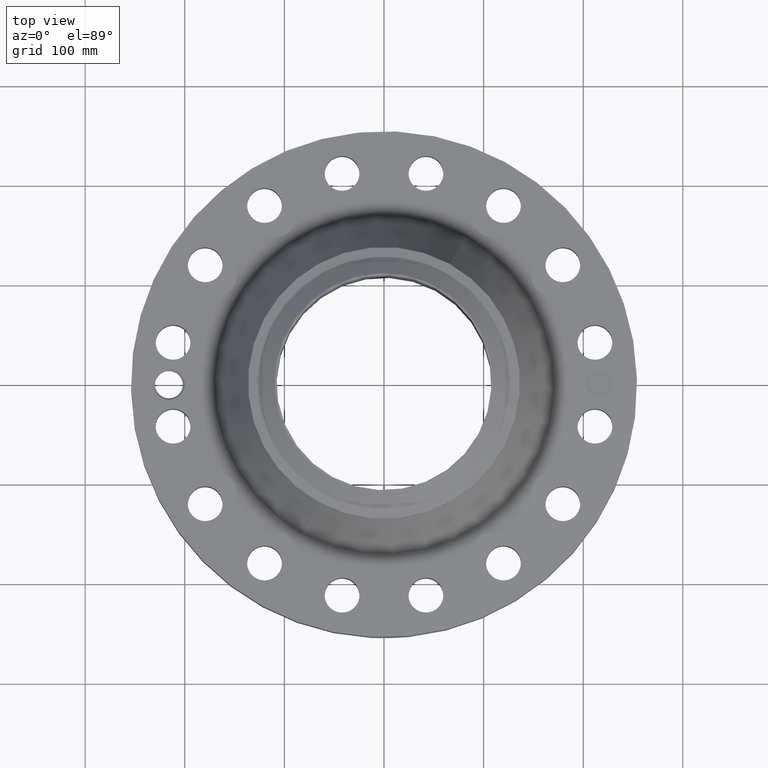
[diagram: clean part render]
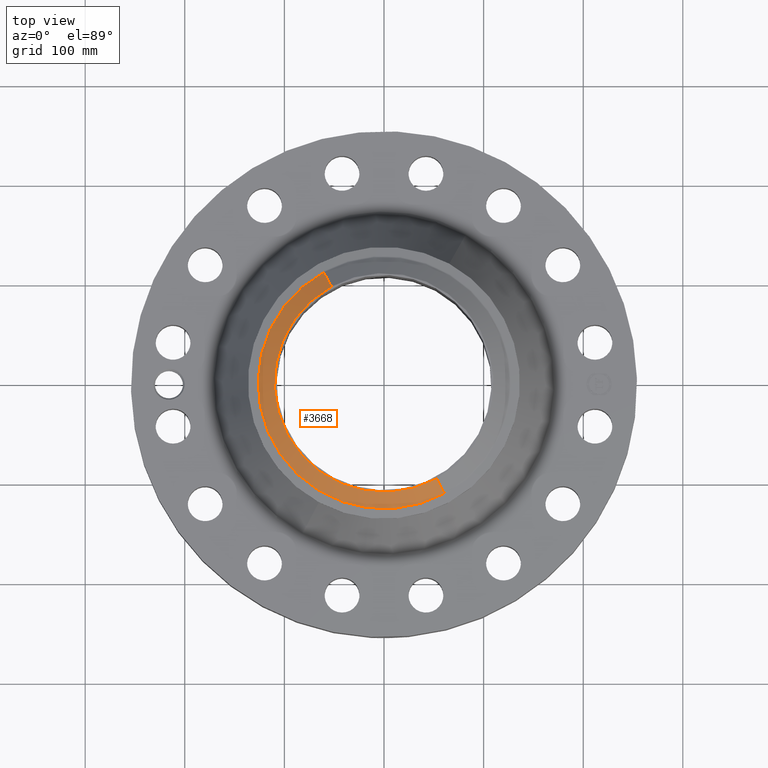
[diagram: same view with one face highlighted and labeled with its STEP entity id]
A machine part, top view. The second image highlights one B-rep face of the part: STEP entity #3668.
In plain terms, the highlighted conical surface has half-angle 52.5 deg.
Its self-contained STEP definition (entity closure, byte-faithful):
#2842=AXIS2_PLACEMENT_3D('Circle Axis2P3D',#2840,#2841,$) ;
#3641=AXIS2_PLACEMENT_3D('Cone Axis2P3D',#3638,#3639,#3640) ;
#3652=AXIS2_PLACEMENT_3D('Circle Axis2P3D',#3650,#3651,$) ;
#2835=CARTESIAN_POINT('Vertex',(2.07530858149,-3.79882687717,6.25000000003)) ;
#2837=CARTESIAN_POINT('Vertex',(-2.07530858149,3.79882687717,6.25000000003)) ;
#2840=CARTESIAN_POINT('Axis2P3D Location',(0.,0.,6.25000000002)) ;
#3638=CARTESIAN_POINT('Axis2P3D Location',(0.,0.,6.25000000003)) ;
#3643=CARTESIAN_POINT('Line Origine',(-2.23024988404,4.08244502908,6.00201437259)) ;
#3647=CARTESIAN_POINT('Vertex',(-2.38519118659,4.36606318098,5.75402874515)) ;
#3650=CARTESIAN_POINT('Axis2P3D Location',(0.,0.,5.75402874515)) ;
#3654=CARTESIAN_POINT('Vertex',(2.38519118659,-4.36606318098,5.75402874515)) ;
#3657=CARTESIAN_POINT('Line Origine',(2.23024988404,-4.08244502908,6.00201437259)) ;
#2841=DIRECTION('Axis2P3D Direction',(0.,0.,-0.0393700787402)) ;
#3639=DIRECTION('Axis2P3D Direction',(-0.,-0.,-0.0393700787402)) ;
#3640=DIRECTION('Axis2P3D XDirection',(-0.0188750212049,0.0345504945626,0.)) ;
#3644=DIRECTION('Vector Direction',(-0.014974561121,0.02741075027,-0.023966985394)) ;
#3651=DIRECTION('Axis2P3D Direction',(0.,0.,-0.0393700787402)) ;
#3658=DIRECTION('Vector Direction',(0.014974561121,-0.02741075027,-0.023966985394)) ;
#3645=VECTOR('Line Direction',#3644,0.0393700787402) ;
#3659=VECTOR('Line Direction',#3658,0.0393700787402) ;
#3663=ORIENTED_EDGE('',*,*,#2844,.F.) ;
#3664=ORIENTED_EDGE('',*,*,#3649,.T.) ;
#3665=ORIENTED_EDGE('',*,*,#3656,.T.) ;
#3666=ORIENTED_EDGE('',*,*,#3661,.F.) ;
#3668=ADVANCED_FACE('PartBody',(#3667),#3642,.T.) ;
#2843=CIRCLE('generated circle',#2842,4.3287401575) ;
#3653=CIRCLE('generated circle',#3652,4.97510248104) ;
#3642=CONICAL_SURFACE('Cone',#3641,4.3287401575,0.916297857297) ;
#2844=EDGE_CURVE('',#2838,#2836,#2843,.F.) ;
#3649=EDGE_CURVE('',#2838,#3648,#3646,.T.) ;
#3656=EDGE_CURVE('',#3648,#3655,#3653,.F.) ;
#3661=EDGE_CURVE('',#2836,#3655,#3660,.T.) ;
#3662=EDGE_LOOP('',(#3663,#3664,#3665,#3666)) ;
#3667=FACE_OUTER_BOUND('',#3662,.T.) ;
#3646=LINE('Line',#3643,#3645) ;
#3660=LINE('Line',#3657,#3659) ;
#2836=VERTEX_POINT('',#2835) ;
#2838=VERTEX_POINT('',#2837) ;
#3648=VERTEX_POINT('',#3647) ;
#3655=VERTEX_POINT('',#3654) ;